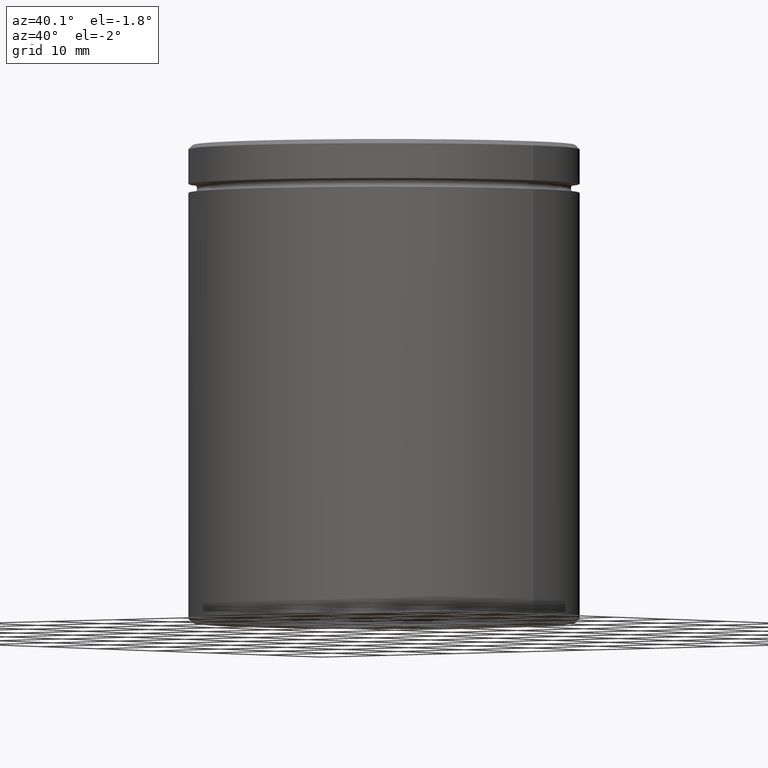
[diagram: clean part render]
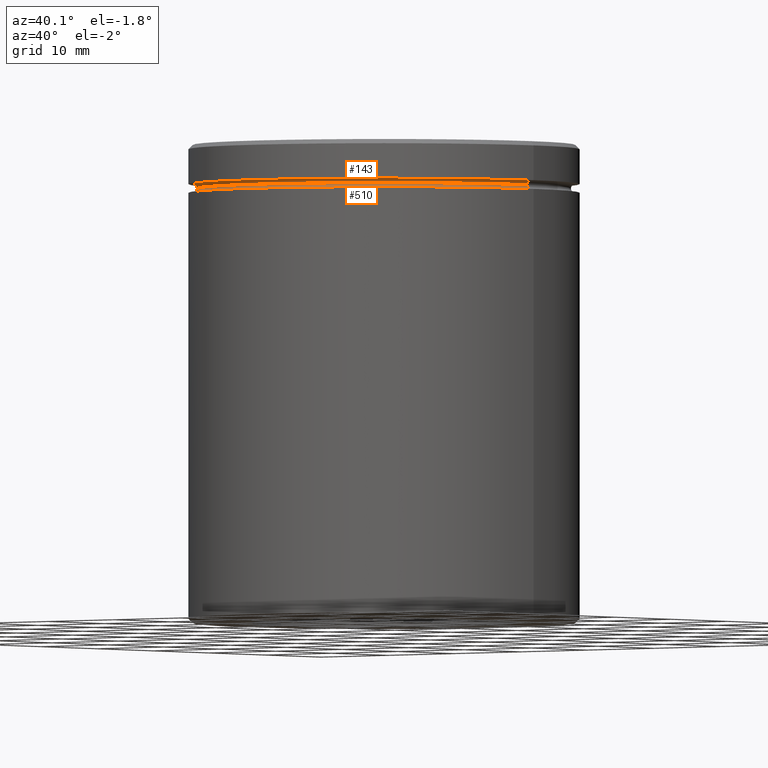
[diagram: same view with one multi-face feature highlighted, each face labeled with its STEP entity id]
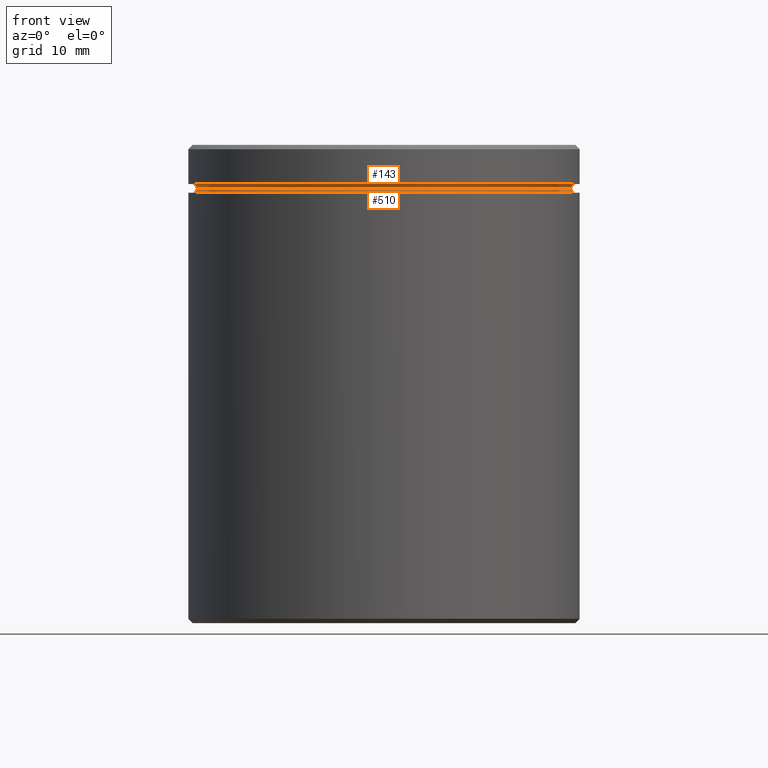
[diagram: same view with one multi-face feature highlighted, each face labeled with its STEP entity id]
A machine part, auxiliary view. The highlighted faces form ONE feature: a constant-radius fillet chain: 2 tangent blend faces with common blend radius 0.5 mm. The faces share edges in the B-rep.
A second angle (front view) of the same feature is appended — it is thin or edge-on in the first view.
Their STEP definitions:
[1] entity #510 (Torus):
#8 = CARTESIAN_POINT ( 'NONE',  ( 0.000000000000000000, 0.000000000000000000, -4.999999999999999112 ) ) ;
#22 = ORIENTED_EDGE ( 'NONE', *, *, #152, .F. ) ;
#38 = CARTESIAN_POINT ( 'NONE',  ( 0.000000000000000000, 0.000000000000000000, -4.999999999999999112 ) ) ;
#40 = ORIENTED_EDGE ( 'NONE', *, *, #480, .F. ) ;
#46 = CIRCLE ( 'NONE', #122, 0.5000000000000004441 ) ;
#54 = DIRECTION ( 'NONE',  ( -1.000000000000000000, 1.224646799147349509E-16, 0.000000000000000000 ) ) ;
#56 = DIRECTION ( 'NONE',  ( 0.000000000000000000, 0.000000000000000000, -1.000000000000000000 ) ) ;
#70 = DIRECTION ( 'NONE',  ( 1.000000000000000000, 0.000000000000000000, 0.000000000000000000 ) ) ;
#95 = DIRECTION ( 'NONE',  ( -0.000000000000000000, -0.000000000000000000, 1.000000000000000000 ) ) ;
#122 = AXIS2_PLACEMENT_3D ( 'NONE', #401, #175, #54 ) ;
#124 = VERTEX_POINT ( 'NONE', #271 ) ;
#128 = EDGE_CURVE ( 'NONE', #522, #298, #46, .T. ) ;
#152 = EDGE_CURVE ( 'NONE', #124, #298, #316, .T. ) ;
#159 = CARTESIAN_POINT ( 'NONE',  ( 22.00000000000000000, 0.000000000000000000, -4.999999999999999112 ) ) ;
#161 = DIRECTION ( 'NONE',  ( -0.000000000000000000, -0.000000000000000000, 1.000000000000000000 ) ) ;
#170 = TOROIDAL_SURFACE ( 'NONE', #565, 22.00000000000000000, 0.5000000000000000000 ) ;
#175 = DIRECTION ( 'NONE',  ( 1.224646799147353207E-16, 1.000000000000000000, 0.000000000000000000 ) ) ;
#213 = EDGE_LOOP ( 'NONE', ( #40, #394, #22, #345 ) ) ;
#269 = CIRCLE ( 'NONE', #513, 21.50000000000000000 ) ;
#271 = CARTESIAN_POINT ( 'NONE',  ( 22.00000000000000000, 0.000000000000000000, -5.500000000000000000 ) ) ;
#283 = VERTEX_POINT ( 'NONE', #325 ) ;
#298 = VERTEX_POINT ( 'NONE', #479 ) ;
#316 = CIRCLE ( 'NONE', #533, 22.00000000000000000 ) ;
#321 = CARTESIAN_POINT ( 'NONE',  ( -21.50000000000000000, 2.663606788145493022E-15, -4.999999999999999112 ) ) ;
#325 = CARTESIAN_POINT ( 'NONE',  ( 21.50000000000000000, 0.000000000000000000, -4.999999999999999112 ) ) ;
#331 = EDGE_CURVE ( 'NONE', #283, #124, #493, .T. ) ;
#345 = ORIENTED_EDGE ( 'NONE', *, *, #331, .F. ) ;
#356 = DIRECTION ( 'NONE',  ( 0.000000000000000000, 0.000000000000000000, -1.000000000000000000 ) ) ;
#394 = ORIENTED_EDGE ( 'NONE', *, *, #128, .T. ) ;
#401 = CARTESIAN_POINT ( 'NONE',  ( -22.00000000000000000, 2.694222958124176809E-15, -4.999999999999999112 ) ) ;
#424 = DIRECTION ( 'NONE',  ( 1.000000000000000000, 0.000000000000000000, 0.000000000000000000 ) ) ;
#449 = AXIS2_PLACEMENT_3D ( 'NONE', #159, #562, #356 ) ;
#479 = CARTESIAN_POINT ( 'NONE',  ( -22.00000000000000000, 2.694222958124176809E-15, -5.500000000000000000 ) ) ;
#480 = EDGE_CURVE ( 'NONE', #522, #283, #269, .T. ) ;
#493 = CIRCLE ( 'NONE', #449, 0.5000000000000004441 ) ;
#501 = CARTESIAN_POINT ( 'NONE',  ( 0.000000000000000000, 0.000000000000000000, -5.500000000000000000 ) ) ;
#505 = DIRECTION ( 'NONE',  ( 1.000000000000000000, 0.000000000000000000, 0.000000000000000000 ) ) ;
#510 = ADVANCED_FACE ( 'NONE', ( #545 ), #170, .F. ) ;
#513 = AXIS2_PLACEMENT_3D ( 'NONE', #38, #161, #424 ) ;
#522 = VERTEX_POINT ( 'NONE', #321 ) ;
#533 = AXIS2_PLACEMENT_3D ( 'NONE', #501, #56, #70 ) ;
#545 = FACE_OUTER_BOUND ( 'NONE', #213, .T. ) ;
#562 = DIRECTION ( 'NONE',  ( 0.000000000000000000, -1.000000000000000000, 0.000000000000000000 ) ) ;
#565 = AXIS2_PLACEMENT_3D ( 'NONE', #8, #95, #505 ) ;
[2] entity #143 (Torus):
#5 = AXIS2_PLACEMENT_3D ( 'NONE', #542, #380, #504 ) ;
#13 = FACE_OUTER_BOUND ( 'NONE', #412, .T. ) ;
#29 = CIRCLE ( 'NONE', #181, 0.5000000000000004441 ) ;
#33 = CARTESIAN_POINT ( 'NONE',  ( 0.000000000000000000, 0.000000000000000000, -4.500000000000000888 ) ) ;
#36 = VERTEX_POINT ( 'NONE', #512 ) ;
#38 = CARTESIAN_POINT ( 'NONE',  ( 0.000000000000000000, 0.000000000000000000, -4.999999999999999112 ) ) ;
#39 = EDGE_CURVE ( 'NONE', #58, #36, #543, .T. ) ;
#58 = VERTEX_POINT ( 'NONE', #566 ) ;
#96 = DIRECTION ( 'NONE',  ( -1.224646799147353207E-16, 1.000000000000000000, 0.000000000000000000 ) ) ;
#102 = CARTESIAN_POINT ( 'NONE',  ( -22.00000000000000000, 0.000000000000000000, -5.000000000000000888 ) ) ;
#114 = DIRECTION ( 'NONE',  ( -1.000000000000000000, 0.000000000000000000, 0.000000000000000000 ) ) ;
#118 = CIRCLE ( 'NONE', #379, 0.5000000000000004441 ) ;
#143 = ADVANCED_FACE ( 'NONE', ( #13 ), #491, .F. ) ;
#161 = DIRECTION ( 'NONE',  ( -0.000000000000000000, -0.000000000000000000, 1.000000000000000000 ) ) ;
#181 = AXIS2_PLACEMENT_3D ( 'NONE', #102, #284, #529 ) ;
#188 = ORIENTED_EDGE ( 'NONE', *, *, #480, .T. ) ;
#214 = DIRECTION ( 'NONE',  ( -0.000000000000000000, -0.000000000000000000, 1.000000000000000000 ) ) ;
#239 = ORIENTED_EDGE ( 'NONE', *, *, #39, .F. ) ;
#269 = CIRCLE ( 'NONE', #513, 21.50000000000000000 ) ;
#275 = CARTESIAN_POINT ( 'NONE',  ( 22.00000000000000000, 2.694222958124176809E-15, -5.000000000000000888 ) ) ;
#283 = VERTEX_POINT ( 'NONE', #325 ) ;
#284 = DIRECTION ( 'NONE',  ( -0.000000000000000000, -1.000000000000000000, -0.000000000000000000 ) ) ;
#286 = ORIENTED_EDGE ( 'NONE', *, *, #568, .F. ) ;
#304 = AXIS2_PLACEMENT_3D ( 'NONE', #33, #214, #114 ) ;
#321 = CARTESIAN_POINT ( 'NONE',  ( -21.50000000000000000, 2.663606788145493022E-15, -4.999999999999999112 ) ) ;
#325 = CARTESIAN_POINT ( 'NONE',  ( 21.50000000000000000, 0.000000000000000000, -4.999999999999999112 ) ) ;
#371 = DIRECTION ( 'NONE',  ( -1.000000000000000000, -1.224646799147349509E-16, 0.000000000000000000 ) ) ;
#379 = AXIS2_PLACEMENT_3D ( 'NONE', #275, #96, #371 ) ;
#380 = DIRECTION ( 'NONE',  ( 0.000000000000000000, 0.000000000000000000, -1.000000000000000000 ) ) ;
#412 = EDGE_LOOP ( 'NONE', ( #188, #546, #239, #286 ) ) ;
#424 = DIRECTION ( 'NONE',  ( 1.000000000000000000, 0.000000000000000000, 0.000000000000000000 ) ) ;
#480 = EDGE_CURVE ( 'NONE', #522, #283, #269, .T. ) ;
#491 = TOROIDAL_SURFACE ( 'NONE', #5, 22.00000000000000000, 0.5000000000000000000 ) ;
#504 = DIRECTION ( 'NONE',  ( -1.000000000000000000, 0.000000000000000000, 0.000000000000000000 ) ) ;
#512 = CARTESIAN_POINT ( 'NONE',  ( 22.00000000000000000, 2.694222958124176809E-15, -4.500000000000000888 ) ) ;
#513 = AXIS2_PLACEMENT_3D ( 'NONE', #38, #161, #424 ) ;
#522 = VERTEX_POINT ( 'NONE', #321 ) ;
#529 = DIRECTION ( 'NONE',  ( 0.000000000000000000, 0.000000000000000000, -1.000000000000000000 ) ) ;
#542 = CARTESIAN_POINT ( 'NONE',  ( 0.000000000000000000, 0.000000000000000000, -5.000000000000000888 ) ) ;
#543 = CIRCLE ( 'NONE', #304, 22.00000000000000000 ) ;
#546 = ORIENTED_EDGE ( 'NONE', *, *, #550, .T. ) ;
#550 = EDGE_CURVE ( 'NONE', #283, #36, #118, .T. ) ;
#566 = CARTESIAN_POINT ( 'NONE',  ( -22.00000000000000000, 0.000000000000000000, -4.500000000000000888 ) ) ;
#568 = EDGE_CURVE ( 'NONE', #522, #58, #29, .T. ) ;